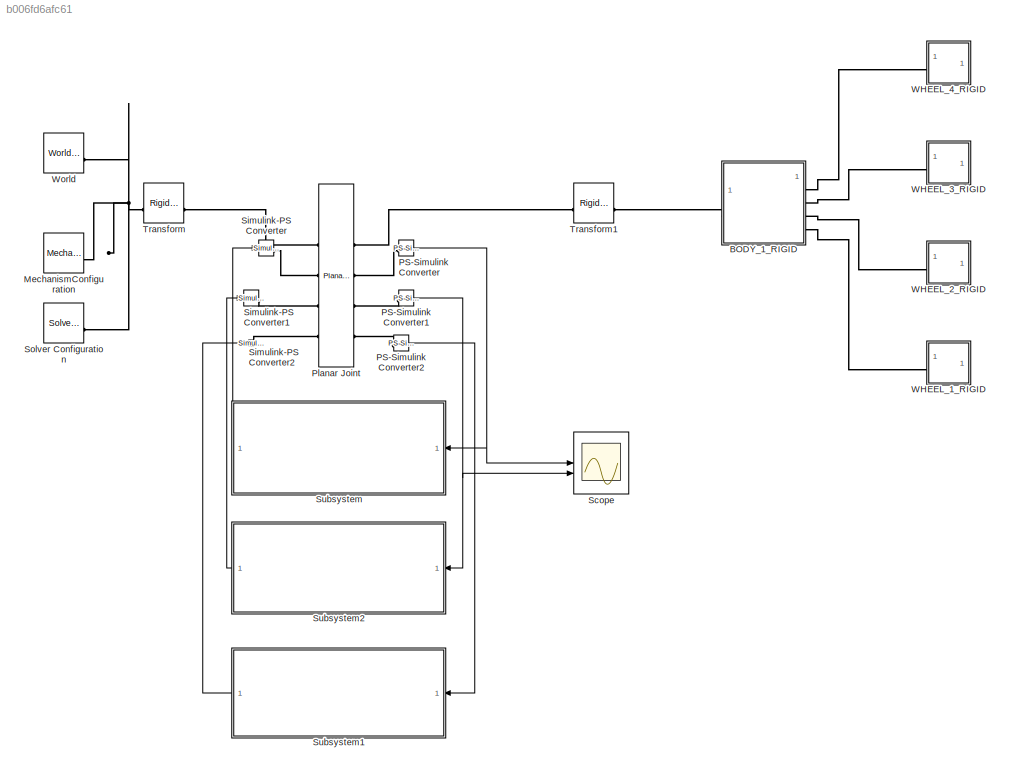
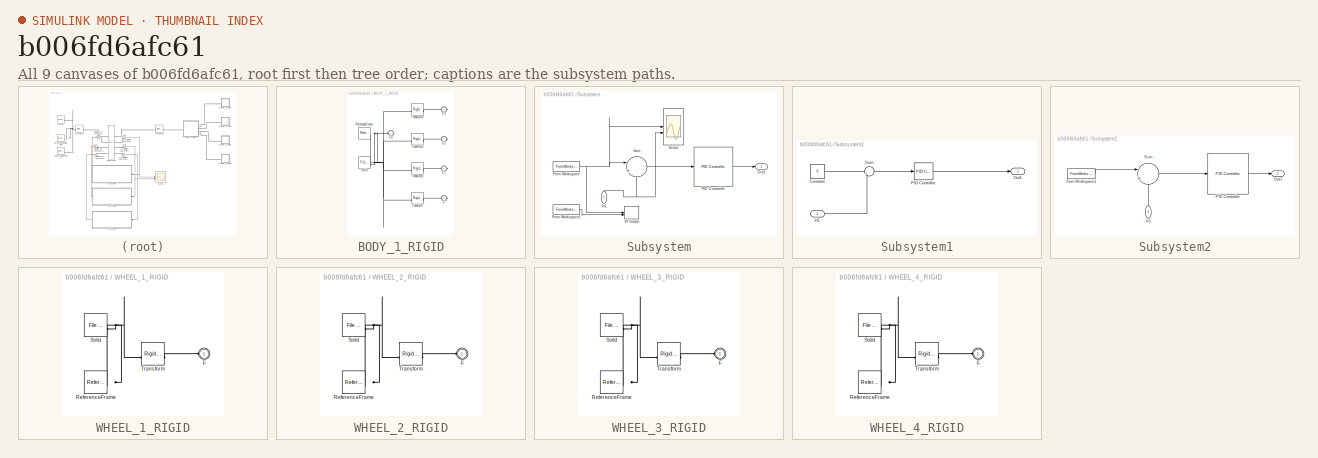
[diagram: thumbnail index - all 9 canvases of the model, root first then tree order]
MODEL slx_b006fd6afc61
KIND model
CONFIG AbsTol = auto
CONFIG EnableMultiTasking = off
CONFIG FixedStep = auto
CONFIG MaxStep = auto
CONFIG MinStep = auto
CONFIG RelTol = 1e-3
CONFIG SampleTimeConstraint = Unconstrained
CONFIG SolverName = VariableStepAuto
CONFIG StartTime = 0.0
CONFIG StopTime = 50
WORKSPACE source: external: MATLAB File  (data not in archive)
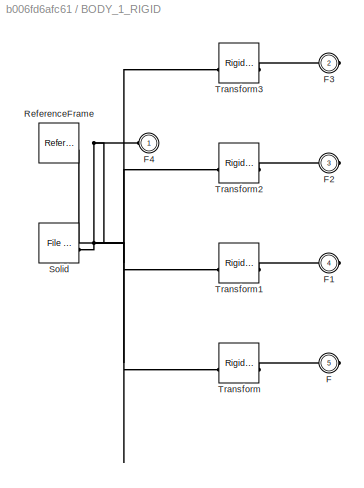
BLOCK [SubSystem] BODY_1_RIGID
BLOCK [PMIOPort] BODY_1_RIGID/F
  Port = 5
  Side = Right
BLOCK [PMIOPort] BODY_1_RIGID/F1
  Port = 4
  Side = Right
BLOCK [PMIOPort] BODY_1_RIGID/F2
  Port = 3
  Side = Right
BLOCK [PMIOPort] BODY_1_RIGID/F3
  Port = 2
  Side = Right
BLOCK [PMIOPort] BODY_1_RIGID/F4
  Side = Left
BLOCK [Reference] BODY_1_RIGID/ReferenceFrame  REF=sm_lib/Frames and
Transforms/Reference
Frame
  SourceBlock = sm_lib/Frames and\nTransforms/Reference\nFrame
  SourceType = Reference\nFrame
BLOCK [Reference] BODY_1_RIGID/Solid  REF=sm_lib/Body Elements/File Solid
  SourceBlock = sm_lib/Body Elements/File Solid
  SourceType = File Solid
BLOCK [Reference] BODY_1_RIGID/Transform  REF=sm_lib/Frames and
Transforms/Rigid
Transform
  SourceBlock = sm_lib/Frames and\nTransforms/Rigid\nTransform
  SourceType = Rigid\nTransform
BLOCK [Reference] BODY_1_RIGID/Transform1  REF=sm_lib/Frames and
Transforms/Rigid
Transform
  SourceBlock = sm_lib/Frames and\nTransforms/Rigid\nTransform
  SourceType = Rigid\nTransform
BLOCK [Reference] BODY_1_RIGID/Transform2  REF=sm_lib/Frames and
Transforms/Rigid
Transform
  SourceBlock = sm_lib/Frames and\nTransforms/Rigid\nTransform
  SourceType = Rigid\nTransform
BLOCK [Reference] BODY_1_RIGID/Transform3  REF=sm_lib/Frames and
Transforms/Rigid
Transform
  SourceBlock = sm_lib/Frames and\nTransforms/Rigid\nTransform
  SourceType = Rigid\nTransform
BLOCK [Reference] MechanismConfiguration  REF=sm_lib/Utilities/Mechanism
Configuration
  SourceBlock = sm_lib/Utilities/Mechanism\nConfiguration
  SourceType = Mechanism\nConfiguration
BLOCK [Reference] PS-Simulink Converter  REF=nesl_utility/PS-Simulink
Converter
  SourceBlock = nesl_utility/PS-Simulink\nConverter
  SourceType = PS-Simulink\nConverter
BLOCK [Reference] PS-Simulink Converter1  REF=nesl_utility/PS-Simulink
Converter
  SourceBlock = nesl_utility/PS-Simulink\nConverter
  SourceType = PS-Simulink\nConverter
BLOCK [Reference] PS-Simulink Converter2  REF=nesl_utility/PS-Simulink
Converter
  SourceBlock = nesl_utility/PS-Simulink\nConverter
  SourceType = PS-Simulink\nConverter
BLOCK [Reference] Planar Joint  REF=sm_lib/Joints/Planar Joint
  SourceBlock = sm_lib/Joints/Planar Joint
  SourceType = Planar Joint
BLOCK [Scope] Scope
  Floating = off
  NumInputPorts = 2
  ScopeSpecificationString = Simulink.scopes.TimeScopeBlockCfg('CurrentConfiguration', extmgr.ConfigurationSet(extmgr.Configuration('Core','General UI',true),extmgr.Configuration('Core','Source UI',true),extmgr.Configuration('Sources','WiredSimulink',true,'DataLoggingVariableName','ScopeData1'),extmgr.Configuration('Visuals','Time Domain',true,'SerializedDisplays',{struct('MinYLimReal','-0.67439','MaxYLimReal','1.06847','YLab...<+1431ch>
BLOCK [Reference] Simulink-PS Converter  REF=nesl_utility/Simulink-PS
Converter
  SourceBlock = nesl_utility/Simulink-PS\nConverter
  SourceType = Simulink-PS\nConverter
BLOCK [Reference] Simulink-PS Converter1  REF=nesl_utility/Simulink-PS
Converter
  SourceBlock = nesl_utility/Simulink-PS\nConverter
  SourceType = Simulink-PS\nConverter
BLOCK [Reference] Simulink-PS Converter2  REF=nesl_utility/Simulink-PS
Converter
  SourceBlock = nesl_utility/Simulink-PS\nConverter
  SourceType = Simulink-PS\nConverter
BLOCK [Reference] Solver Configuration  REF=nesl_utility/Solver
Configuration
  SourceBlock = nesl_utility/Solver\nConfiguration
  SourceType = Solver\nConfiguration
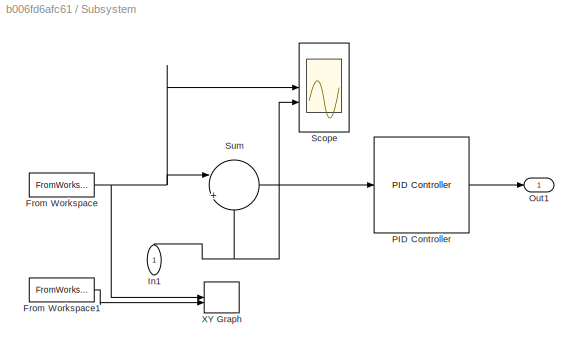
BLOCK [SubSystem] Subsystem
  NameLocation = top
BLOCK [FromWorkspace] Subsystem/From Workspace
  SampleTime = 0.01
  VariableName = tsx
BLOCK [FromWorkspace] Subsystem/From Workspace1
  SampleTime = 0.01
  VariableName = tsy
BLOCK [Inport] Subsystem/In1
  NameLocation = right
BLOCK [Outport] Subsystem/Out1
BLOCK [Reference] Subsystem/PID Controller  REF=slpidlib/PID Controller
  LibrarySourceBlock = simulink/Continuous/PID Controller
  SourceBlock = slpidlib/PID Controller
  SourceType = PID 1dof
BLOCK [Scope] Subsystem/Scope
  Floating = off
  NumInputPorts = 2
  ScopeSpecificationString = Simulink.scopes.TimeScopeBlockCfg('CurrentConfiguration', extmgr.ConfigurationSet(extmgr.Configuration('Core','General UI',true),extmgr.Configuration('Core','Source UI',true),extmgr.Configuration('Sources','WiredSimulink',true),extmgr.Configuration('Visuals','Time Domain',true,'SerializedDisplays',{struct('MinYLimReal','-0.01252','MaxYLimReal','0.01252','YLabelReal','','MinYLimMag','0.00000','MaxY...<+1364ch>
BLOCK [Sum] Subsystem/Sum
  Inputs = |+-
BLOCK [Record] Subsystem/XY Graph
  CompatibilityTag = XY
  FileSettingsInternal = {"entries":[{"content":{"excelSettings":{"content":{},"type":"Streamout.ExcelSettings"}},"type":"Streamout.FileSettingStorage","uuid":""}],"packageUris":["http:\/\/schema.mathworks.com\/mf0\/streamout_blocks\/R2020a"],"version":"1.0"}
  Layout = [1 1]
  SignalsInternal = {"entries":[{"content":{"signals":[{"content":{"blockPath":[],"dimensions":[1,1],"domain":"","lineColor":"#a2142f","plots":[1],"port":1,"sid":[""],"signalID":708,"signalName":"From\nWorkspace"},"type":"RecordBlkView.Signal","uuid":""},{"content":{"blockPath":[],"dimensions":[1,1],"domain":"","lineColor":"#139fff","plots":[1],"port":2,"sid":[""],"signalID":712,"signalName":"From\nWorkspace1"},"type...<+181ch>
  VisualizationBindings = {"xyplotplugin":{"info":[{"series":[{"bindingParametersList":[{"parameter":"X-Axis","signalID":708,"signalName":"From\nWorkspace"},{"parameter":"Y-Axis","signalID":712,"signalName":"From\nWorkspace1"}],"seriesID":61324}],"subplotID":1}]}}
BLOCK [SubSystem] Subsystem1
  NameLocation = top
BLOCK [Constant] Subsystem1/Constant
  Value = 0
BLOCK [Inport] Subsystem1/In1
BLOCK [Outport] Subsystem1/Out1
BLOCK [Reference] Subsystem1/PID Controller  REF=slpidlib/PID Controller
  LibrarySourceBlock = simulink/Continuous/PID Controller
  SourceBlock = slpidlib/PID Controller
  SourceType = PID 1dof
BLOCK [Sum] Subsystem1/Sum
  Inputs = |++
BLOCK [SubSystem] Subsystem2
  NameLocation = top
BLOCK [FromWorkspace] Subsystem2/From Workspace1
  SampleTime = 0.01
  VariableName = tsy
BLOCK [Inport] Subsystem2/In1
  NameLocation = right
BLOCK [Outport] Subsystem2/Out1
BLOCK [Reference] Subsystem2/PID Controller  REF=slpidlib/PID Controller
  LibrarySourceBlock = simulink/Continuous/PID Controller
  SourceBlock = slpidlib/PID Controller
  SourceType = PID 1dof
BLOCK [Sum] Subsystem2/Sum
  Inputs = |+-
BLOCK [Reference] Transform  REF=sm_lib/Frames and
Transforms/Rigid
Transform
  SourceBlock = sm_lib/Frames and\nTransforms/Rigid\nTransform
  SourceType = Rigid\nTransform
BLOCK [Reference] Transform1  REF=sm_lib/Frames and
Transforms/Rigid
Transform
  SourceBlock = sm_lib/Frames and\nTransforms/Rigid\nTransform
  SourceType = Rigid\nTransform
BLOCK [SubSystem] WHEEL_1_RIGID
BLOCK [PMIOPort] WHEEL_1_RIGID/F
  Side = Left
BLOCK [Reference] WHEEL_1_RIGID/ReferenceFrame  REF=sm_lib/Frames and
Transforms/Reference
Frame
  SourceBlock = sm_lib/Frames and\nTransforms/Reference\nFrame
  SourceType = Reference\nFrame
BLOCK [Reference] WHEEL_1_RIGID/Solid  REF=sm_lib/Body Elements/File Solid
  SourceBlock = sm_lib/Body Elements/File Solid
  SourceType = File Solid
BLOCK [Reference] WHEEL_1_RIGID/Transform  REF=sm_lib/Frames and
Transforms/Rigid
Transform
  SourceBlock = sm_lib/Frames and\nTransforms/Rigid\nTransform
  SourceType = Rigid\nTransform
BLOCK [SubSystem] WHEEL_2_RIGID
BLOCK [PMIOPort] WHEEL_2_RIGID/F
  Side = Left
BLOCK [Reference] WHEEL_2_RIGID/ReferenceFrame  REF=sm_lib/Frames and
Transforms/Reference
Frame
  SourceBlock = sm_lib/Frames and\nTransforms/Reference\nFrame
  SourceType = Reference\nFrame
BLOCK [Reference] WHEEL_2_RIGID/Solid  REF=sm_lib/Body Elements/File Solid
  SourceBlock = sm_lib/Body Elements/File Solid
  SourceType = File Solid
BLOCK [Reference] WHEEL_2_RIGID/Transform  REF=sm_lib/Frames and
Transforms/Rigid
Transform
  SourceBlock = sm_lib/Frames and\nTransforms/Rigid\nTransform
  SourceType = Rigid\nTransform
BLOCK [SubSystem] WHEEL_3_RIGID
BLOCK [PMIOPort] WHEEL_3_RIGID/F
  Side = Left
BLOCK [Reference] WHEEL_3_RIGID/ReferenceFrame  REF=sm_lib/Frames and
Transforms/Reference
Frame
  SourceBlock = sm_lib/Frames and\nTransforms/Reference\nFrame
  SourceType = Reference\nFrame
BLOCK [Reference] WHEEL_3_RIGID/Solid  REF=sm_lib/Body Elements/File Solid
  SourceBlock = sm_lib/Body Elements/File Solid
  SourceType = File Solid
BLOCK [Reference] WHEEL_3_RIGID/Transform  REF=sm_lib/Frames and
Transforms/Rigid
Transform
  SourceBlock = sm_lib/Frames and\nTransforms/Rigid\nTransform
  SourceType = Rigid\nTransform
BLOCK [SubSystem] WHEEL_4_RIGID
BLOCK [PMIOPort] WHEEL_4_RIGID/F
  Side = Left
BLOCK [Reference] WHEEL_4_RIGID/ReferenceFrame  REF=sm_lib/Frames and
Transforms/Reference
Frame
  SourceBlock = sm_lib/Frames and\nTransforms/Reference\nFrame
  SourceType = Reference\nFrame
BLOCK [Reference] WHEEL_4_RIGID/Solid  REF=sm_lib/Body Elements/File Solid
  SourceBlock = sm_lib/Body Elements/File Solid
  SourceType = File Solid
BLOCK [Reference] WHEEL_4_RIGID/Transform  REF=sm_lib/Frames and
Transforms/Rigid
Transform
  SourceBlock = sm_lib/Frames and\nTransforms/Rigid\nTransform
  SourceType = Rigid\nTransform
BLOCK [Reference] World  REF=sm_lib/Frames and
Transforms/World Frame
  SourceBlock = sm_lib/Frames and\nTransforms/World Frame
  SourceType = World Frame
NET PS-Simulink Converter1:1 -> Scope:2, Subsystem2:1
LINE PS-Simulink Converter2:1 -> Subsystem1:1
NET PS-Simulink Converter:1 -> Scope:1, Subsystem:1
LINE Subsystem/From Workspace1:1 -> Subsystem/XY Graph:2
NET Subsystem/From Workspace:1 -> Subsystem/Scope:1, Subsystem/Sum:1, Subsystem/XY Graph:1
NET Subsystem/In1:1 -> Subsystem/Scope:2, Subsystem/Sum:2
LINE Subsystem/PID Controller:1 -> Subsystem/Out1:1
LINE Subsystem/Sum:1 -> Subsystem/PID Controller:1
LINE Subsystem1/Constant:1 -> Subsystem1/PID Controller:1
LINE Subsystem1/In1:1 -> Subsystem1/Sum:2
LINE Subsystem1/PID Controller:1 -> Subsystem1/Out1:1
LINE Subsystem1:1 -> Simulink-PS Converter2:1
LINE Subsystem2/From Workspace1:1 -> Subsystem2/Sum:1
LINE Subsystem2/In1:1 -> Subsystem2/Sum:2
LINE Subsystem2/PID Controller:1 -> Subsystem2/Out1:1
LINE Subsystem2/Sum:1 -> Subsystem2/PID Controller:1
LINE Subsystem2:1 -> Simulink-PS Converter1:1
LINE Subsystem:1 -> Simulink-PS Converter:1
PLINE BODY_1_RIGID/F1:RConn1 -- BODY_1_RIGID/Transform1:RConn1
PLINE BODY_1_RIGID/F2:RConn1 -- BODY_1_RIGID/Transform2:RConn1
PLINE BODY_1_RIGID/F3:RConn1 -- BODY_1_RIGID/Transform3:RConn1
PNET net1: BODY_1_RIGID/F4:RConn1 -- BODY_1_RIGID/ReferenceFrame:RConn1 -- BODY_1_RIGID/Solid:RConn1 -- BODY_1_RIGID/Transform1:LConn1 -- BODY_1_RIGID/Transform2:LConn1 -- BODY_1_RIGID/Transform3:LConn1 -- BODY_1_RIGID/Transform:LConn1
PLINE BODY_1_RIGID/F:RConn1 -- BODY_1_RIGID/Transform:RConn1
PLINE BODY_1_RIGID:LConn1 -- Transform1:RConn1
PLINE BODY_1_RIGID:RConn1 -- WHEEL_4_RIGID:LConn1
PLINE BODY_1_RIGID:RConn2 -- WHEEL_3_RIGID:LConn1
PLINE BODY_1_RIGID:RConn3 -- WHEEL_2_RIGID:LConn1
PLINE BODY_1_RIGID:RConn4 -- WHEEL_1_RIGID:LConn1
PNET net2: MechanismConfiguration:RConn1 -- Solver Configuration:RConn1 -- Transform:LConn1 -- World:RConn1
PLINE PS-Simulink Converter1:LConn1 -- Planar Joint:RConn3
PLINE PS-Simulink Converter2:LConn1 -- Planar Joint:RConn4
PLINE PS-Simulink Converter:LConn1 -- Planar Joint:RConn2
PLINE Planar Joint:LConn1 -- Transform:RConn1
PLINE Planar Joint:LConn2 -- Simulink-PS Converter:RConn1
PLINE Planar Joint:LConn3 -- Simulink-PS Converter1:RConn1
PLINE Planar Joint:LConn4 -- Simulink-PS Converter2:RConn1
PLINE Planar Joint:RConn1 -- Transform1:LConn1
PLINE WHEEL_1_RIGID/F:RConn1 -- WHEEL_1_RIGID/Transform:RConn1
PNET net3: WHEEL_1_RIGID/ReferenceFrame:RConn1 -- WHEEL_1_RIGID/Solid:RConn1 -- WHEEL_1_RIGID/Transform:LConn1
PLINE WHEEL_2_RIGID/F:RConn1 -- WHEEL_2_RIGID/Transform:RConn1
PNET net4: WHEEL_2_RIGID/ReferenceFrame:RConn1 -- WHEEL_2_RIGID/Solid:RConn1 -- WHEEL_2_RIGID/Transform:LConn1
PLINE WHEEL_3_RIGID/F:RConn1 -- WHEEL_3_RIGID/Transform:RConn1
PNET net5: WHEEL_3_RIGID/ReferenceFrame:RConn1 -- WHEEL_3_RIGID/Solid:RConn1 -- WHEEL_3_RIGID/Transform:LConn1
PLINE WHEEL_4_RIGID/F:RConn1 -- WHEEL_4_RIGID/Transform:RConn1
PNET net6: WHEEL_4_RIGID/ReferenceFrame:RConn1 -- WHEEL_4_RIGID/Solid:RConn1 -- WHEEL_4_RIGID/Transform:LConn1
note: NET lines group one-source signal fan-out (src -> all destinations, sorted); 1:1 wires keep LINE; PNET lines group multi-terminal physical nets as a canonical sorted terminal list (undirected conserving connections); 2-terminal nets keep the pairwise PLINE form
